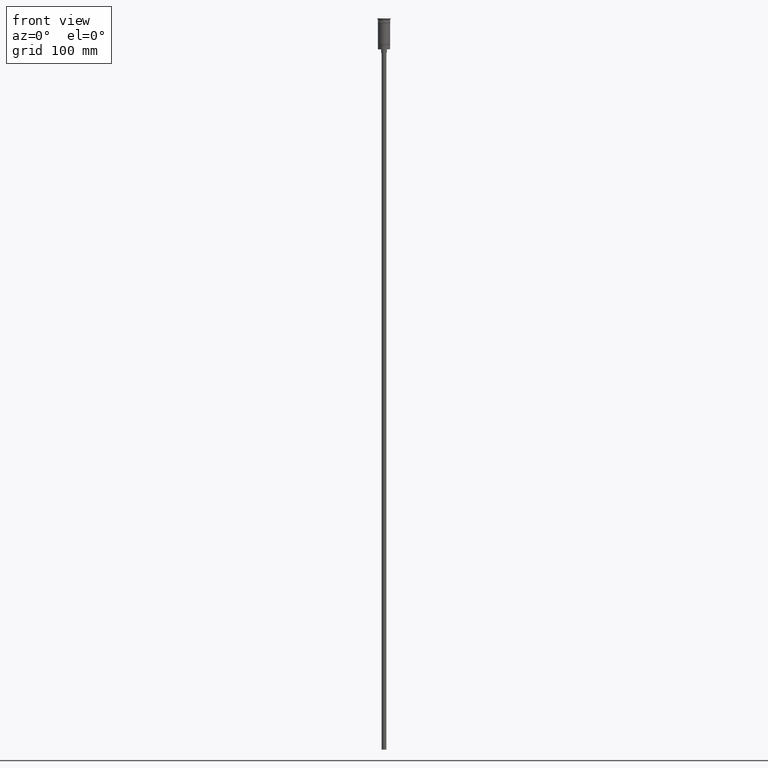
[diagram: clean part render]
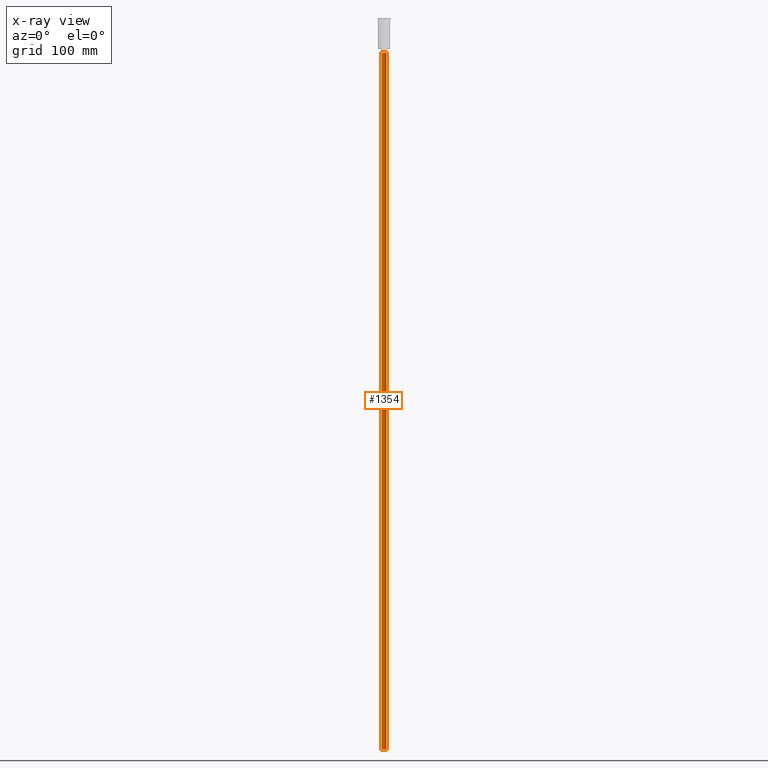
[diagram: x-ray — body ghosted, one internal face saturated and labeled with its STEP entity id]
A machine part, front view, then the same camera in x-ray: the body is ghosted and one INTERNAL B-rep face — a face not visible from any outside direction — is saturated and labeled: STEP entity #1354.
In plain terms, the highlighted cylindrical surface (edge-blend (fillet) strip) has radius 2 mm, axis along (-0, -0, 1).
Its self-contained STEP definition (entity closure, byte-faithful):
#2 = CARTESIAN_POINT ( 'NONE',  ( -2.000000000000000000, 2.449293598294706414E-16, -626.5000000000000000 ) ) ;
#4 = CARTESIAN_POINT ( 'NONE',  ( -2.000000000000000000, 2.449293598294706414E-16, -626.5000000000000000 ) ) ;
#33 = ORIENTED_EDGE ( 'NONE', *, *, #874, .T. ) ;
#156 = CARTESIAN_POINT ( 'NONE',  ( 2.000000000000000000, 0.000000000000000000, -29.50000000000000000 ) ) ;
#195 = EDGE_CURVE ( 'NONE', #1311, #1194, #400, .T. ) ;
#266 = CARTESIAN_POINT ( 'NONE',  ( 0.000000000000000000, 0.000000000000000000, -626.5000000000000000 ) ) ;
#400 = CIRCLE ( 'NONE', #1172, 2.000000000000000000 ) ;
#418 = DIRECTION ( 'NONE',  ( -0.000000000000000000, -0.000000000000000000, 1.000000000000000000 ) ) ;
#427 = LINE ( 'NONE', #795, #1127 ) ;
#487 = EDGE_CURVE ( 'NONE', #1123, #1035, #737, .T. ) ;
#590 = CARTESIAN_POINT ( 'NONE',  ( 2.000000000000000000, 0.000000000000000000, -626.5000000000000000 ) ) ;
#592 = CARTESIAN_POINT ( 'NONE',  ( 0.000000000000000000, 0.000000000000000000, -626.5000000000000000 ) ) ;
#614 = LINE ( 'NONE', #4, #1155 ) ;
#630 = EDGE_CURVE ( 'NONE', #1194, #1035, #427, .T. ) ;
#658 = DIRECTION ( 'NONE',  ( 0.000000000000000000, 0.000000000000000000, -1.000000000000000000 ) ) ;
#659 = DIRECTION ( 'NONE',  ( -1.000000000000000000, 0.000000000000000000, 0.000000000000000000 ) ) ;
#737 = CIRCLE ( 'NONE', #817, 2.000000000000000000 ) ;
#770 = DIRECTION ( 'NONE',  ( -0.000000000000000000, -0.000000000000000000, 1.000000000000000000 ) ) ;
#795 = CARTESIAN_POINT ( 'NONE',  ( 2.000000000000000000, 0.000000000000000000, -626.5000000000000000 ) ) ;
#802 = ORIENTED_EDGE ( 'NONE', *, *, #630, .F. ) ;
#817 = AXIS2_PLACEMENT_3D ( 'NONE', #1148, #658, #1166 ) ;
#830 = CARTESIAN_POINT ( 'NONE',  ( -2.000000000000000000, 2.449293598294706414E-16, -29.50000000000000000 ) ) ;
#873 = DIRECTION ( 'NONE',  ( -0.000000000000000000, -0.000000000000000000, 1.000000000000000000 ) ) ;
#874 = EDGE_CURVE ( 'NONE', #1311, #1123, #614, .T. ) ;
#880 = FACE_OUTER_BOUND ( 'NONE', #901, .T. ) ;
#901 = EDGE_LOOP ( 'NONE', ( #1149, #33, #1352, #802 ) ) ;
#1035 = VERTEX_POINT ( 'NONE', #156 ) ;
#1123 = VERTEX_POINT ( 'NONE', #830 ) ;
#1127 = VECTOR ( 'NONE', #418, 1000.000000000000000 ) ;
#1148 = CARTESIAN_POINT ( 'NONE',  ( 0.000000000000000000, 0.000000000000000000, -29.50000000000000000 ) ) ;
#1149 = ORIENTED_EDGE ( 'NONE', *, *, #195, .F. ) ;
#1155 = VECTOR ( 'NONE', #873, 1000.000000000000000 ) ;
#1164 = DIRECTION ( 'NONE',  ( 0.000000000000000000, 0.000000000000000000, -1.000000000000000000 ) ) ;
#1166 = DIRECTION ( 'NONE',  ( -1.000000000000000000, 0.000000000000000000, 0.000000000000000000 ) ) ;
#1171 = CYLINDRICAL_SURFACE ( 'NONE', #1300, 2.000000000000000000 ) ;
#1172 = AXIS2_PLACEMENT_3D ( 'NONE', #592, #1164, #659 ) ;
#1194 = VERTEX_POINT ( 'NONE', #590 ) ;
#1257 = DIRECTION ( 'NONE',  ( 1.000000000000000000, 0.000000000000000000, 0.000000000000000000 ) ) ;
#1300 = AXIS2_PLACEMENT_3D ( 'NONE', #266, #770, #1257 ) ;
#1311 = VERTEX_POINT ( 'NONE', #2 ) ;
#1352 = ORIENTED_EDGE ( 'NONE', *, *, #487, .T. ) ;
#1354 = ADVANCED_FACE ( 'NONE', ( #880 ), #1171, .T. ) ;